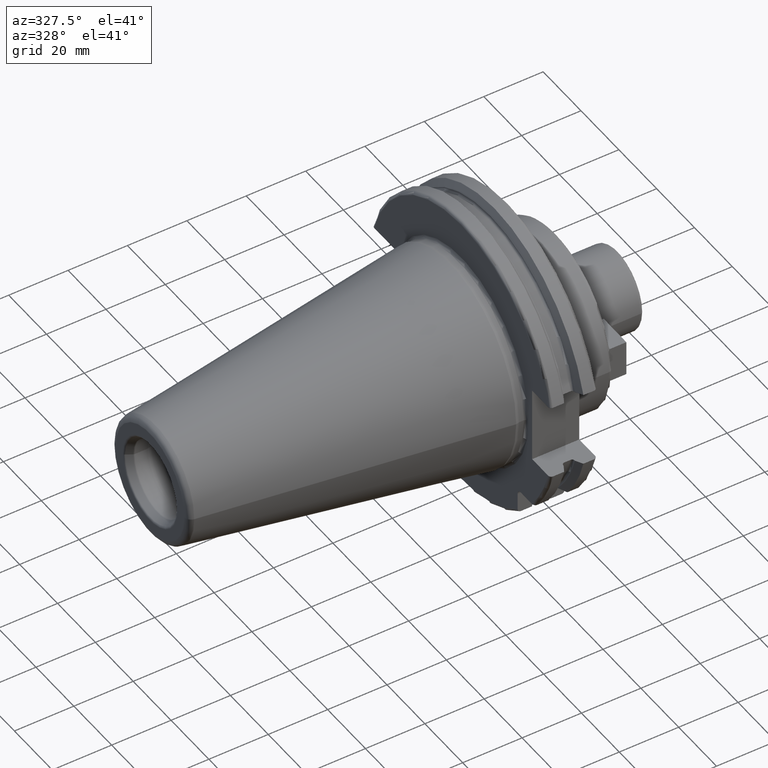
[diagram: clean part render]
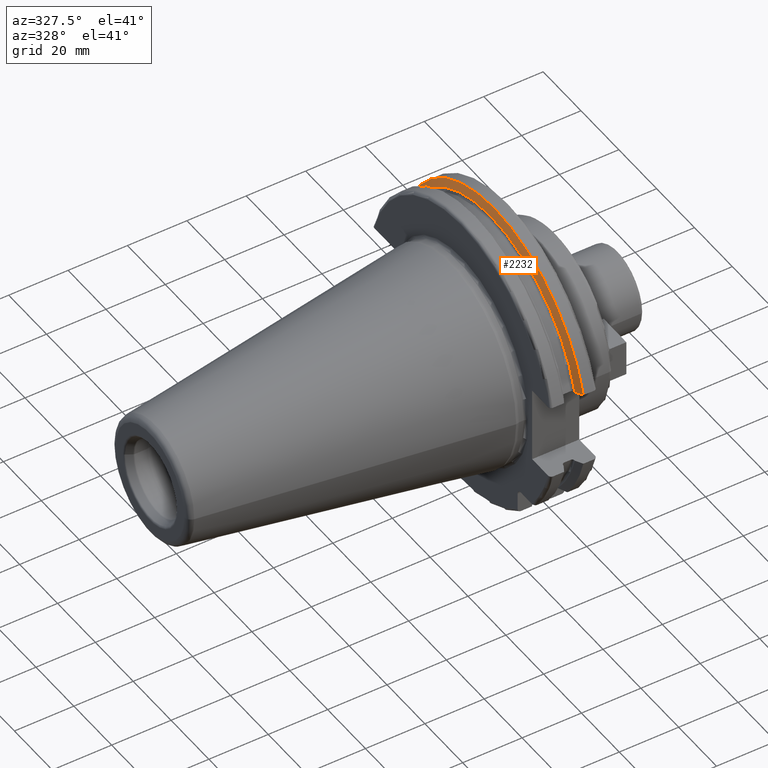
[diagram: same view with one face highlighted and labeled with its STEP entity id]
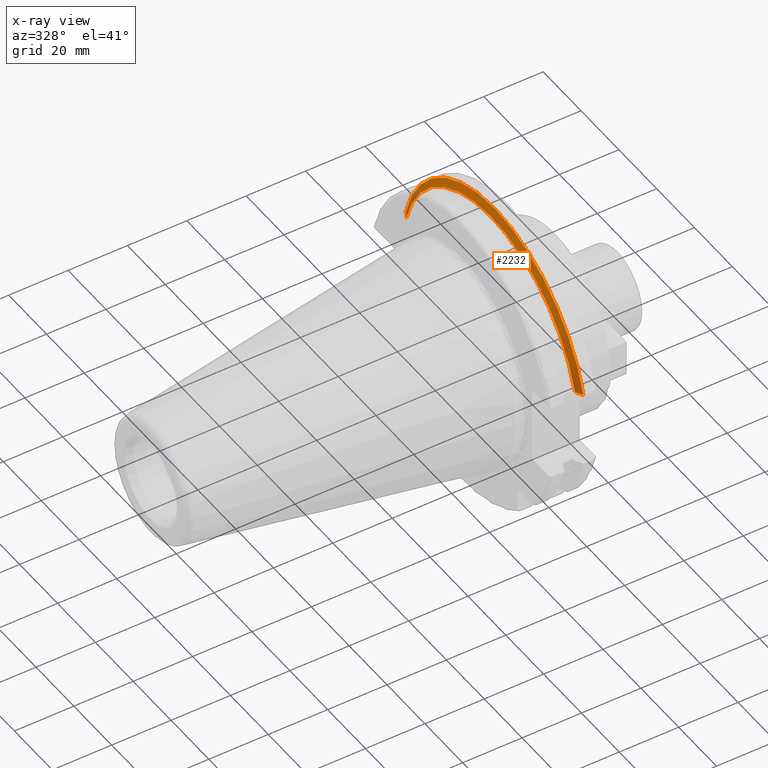
[diagram: x-ray of the same camera — body ghosted, the highlighted face saturated]
A machine part, auxiliary view. The second image highlights one B-rep face of the part: STEP entity #2232.
The next image is the same camera in x-ray: the body ghosted, the highlighted face saturated — about 5% of this face is hidden behind the body in this view.
In plain terms, the highlighted conical surface has half-angle 60 deg.
Its self-contained STEP definition (entity closure, byte-faithful):
#457=CARTESIAN_POINT('',(1.441537838583E1,4.699929686974E1,1.29E1));
#458=CARTESIAN_POINT('',(1.426451908496E1,4.672833723043E1,1.29E1));
#459=CARTESIAN_POINT('',(1.396501135619E1,4.619006057422E1,1.29E1));
#460=CARTESIAN_POINT('',(1.352242021955E1,4.539363402665E1,1.29E1));
#461=CARTESIAN_POINT('',(1.323173924582E1,4.486988275438E1,1.29E1));
#462=CARTESIAN_POINT('',(1.30875E1,4.460981716077E1,1.29E1));
#464=CARTESIAN_POINT('',(1.30875E1,-4.460981716077E1,1.29E1));
#465=CARTESIAN_POINT('',(1.323171622645E1,-4.486984125009E1,1.29E1));
#466=CARTESIAN_POINT('',(1.352236645045E1,-4.539353719098E1,1.29E1));
#467=CARTESIAN_POINT('',(1.396495664446E1,-4.618996220278E1,1.29E1));
#468=CARTESIAN_POINT('',(1.426449561388E1,-4.672829507383E1,1.29E1));
#469=CARTESIAN_POINT('',(1.441537838583E1,-4.699929686974E1,1.29E1));
#471=CARTESIAN_POINT('',(1.30875E1,0.E0,0.E0));
#472=DIRECTION('',(1.E0,0.E0,0.E0));
#473=DIRECTION('',(0.E0,9.606411165078E-1,2.777924499957E-1));
#474=AXIS2_PLACEMENT_3D('',#471,#472,#473);
#502=CARTESIAN_POINT('',(1.441537838583E1,0.E0,0.E0));
#503=DIRECTION('',(1.E0,0.E0,0.E0));
#504=DIRECTION('',(0.E0,9.643354064066E-1,2.646832521159E-1));
#505=AXIS2_PLACEMENT_3D('',#502,#503,#504);
#1436=CARTESIAN_POINT('',(1.30875E1,4.460981716077E1,1.29E1));
#1437=VERTEX_POINT('',#1436);
#1446=CARTESIAN_POINT('',(1.30875E1,-4.460981716077E1,1.29E1));
#1447=VERTEX_POINT('',#1446);
#1448=VERTEX_POINT('',#457);
#1449=VERTEX_POINT('',#469);
#2220=CARTESIAN_POINT('',(1.375143919291E1,0.E0,0.E0));
#2221=DIRECTION('',(1.E0,0.E0,0.E0));
#2222=DIRECTION('',(0.E0,-1.E0,0.E0));
#2223=AXIS2_PLACEMENT_3D('',#2220,#2221,#2222);
#2224=CONICAL_SURFACE('',#2223,4.758752358474E1,6.E1);
#2225=ORIENTED_EDGE('',*,*,#2080,.F.);
#2227=ORIENTED_EDGE('',*,*,#2226,.T.);
#2228=ORIENTED_EDGE('',*,*,#2121,.F.);
#2229=ORIENTED_EDGE('',*,*,#2184,.F.);
#2230=EDGE_LOOP('',(#2225,#2227,#2228,#2229));
#2231=FACE_OUTER_BOUND('',#2230,.F.);
#2232=ADVANCED_FACE('',(#2231),#2224,.T.);
#463=B_SPLINE_CURVE_WITH_KNOTS('',3,(#457,#458,#459,#460,#461,#462),
.UNSPECIFIED.,.F.,.F.,(4,1,1,4),(0.E0,3.333333333333E-1,6.666666666667E-1,1.E0),
.UNSPECIFIED.);
#470=B_SPLINE_CURVE_WITH_KNOTS('',3,(#464,#465,#466,#467,#468,#469),
.UNSPECIFIED.,.F.,.F.,(4,1,1,4),(0.E0,3.333333333333E-1,6.666666666667E-1,1.E0),
.UNSPECIFIED.);
#475=CIRCLE('',#474,4.643754716948E1);
#506=CIRCLE('',#505,4.87375E1);
#2080=EDGE_CURVE('',#1448,#1437,#463,.T.);
#2121=EDGE_CURVE('',#1447,#1449,#470,.T.);
#2184=EDGE_CURVE('',#1437,#1447,#475,.T.);
#2226=EDGE_CURVE('',#1448,#1449,#506,.T.);